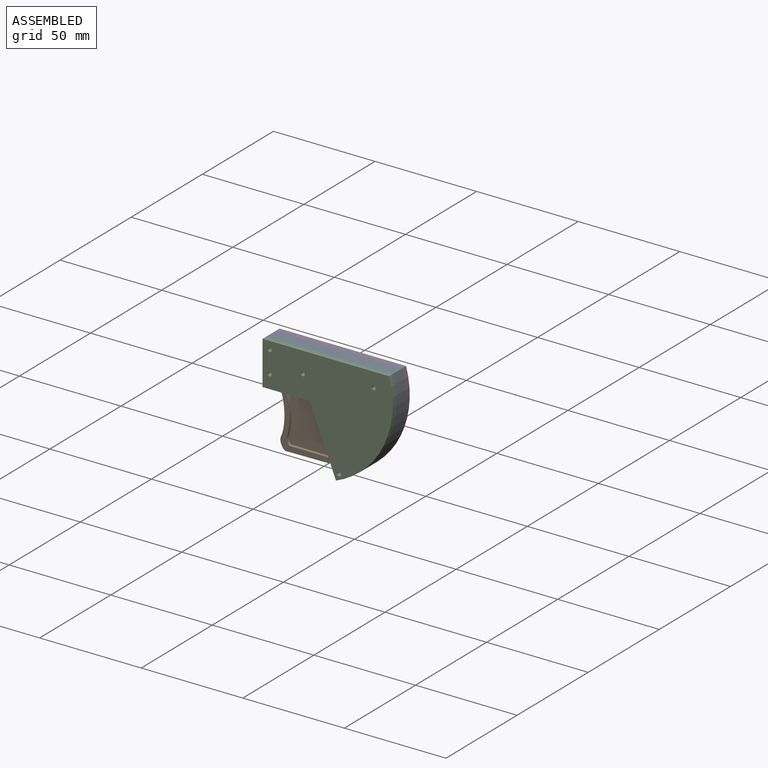
[diagram: assembled view]
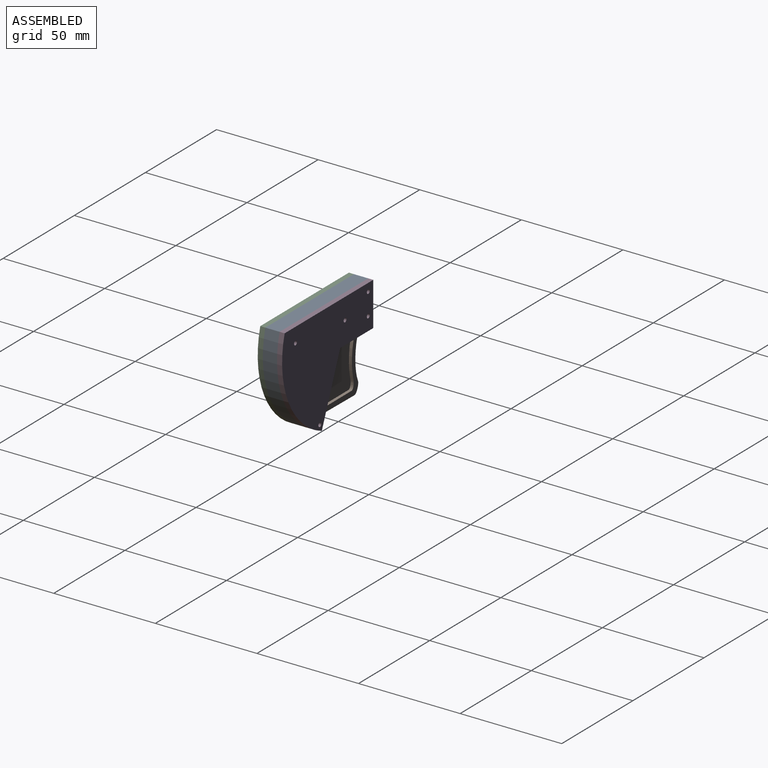
[diagram: assembled view, second angle]
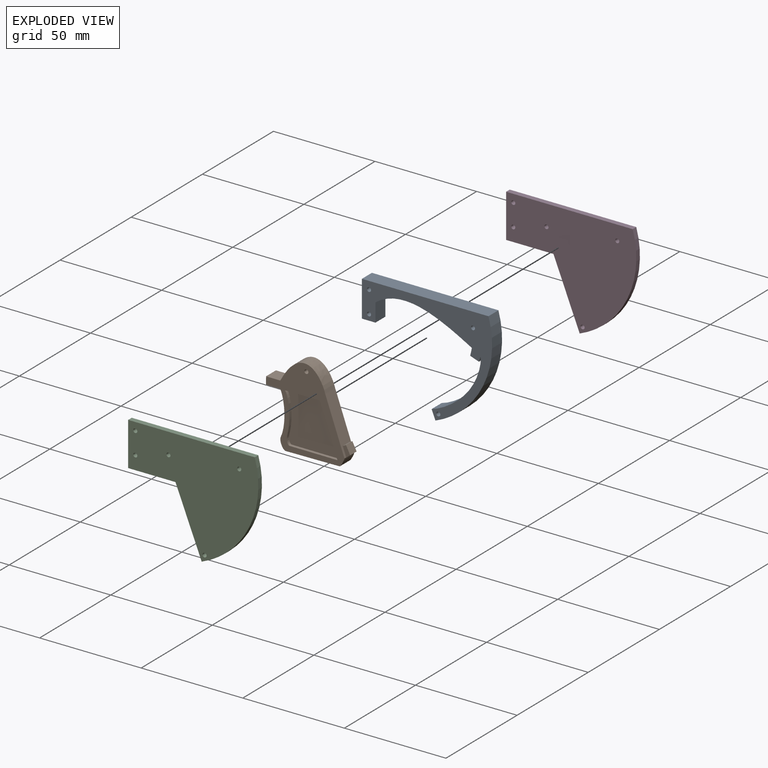
[diagram: exploded view]
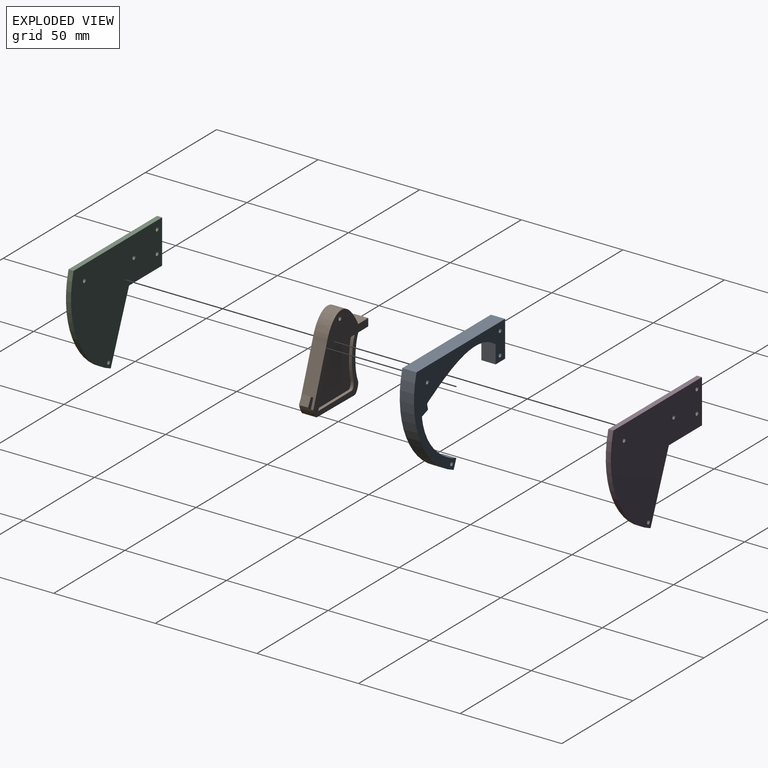
[diagram: exploded view, second angle]
ASSEMBLY  parts=4 mates=3
PART A: 21 faces, bbox 64.1x7x53.4 mm
  f0: plane 7x4.84mm, normal (-0.53,0,-0.85), area 16.5mm2, adj f2,f3,f14,f15,f16,f19,f20
  f1: extruded ~45.63x11.18mm, area 342.3mm2, adj f2,f13,f14,f15
  f2: plane 7x1.19mm, normal (-0.49,0,-0.87), area 9.5mm2, adj f0,f1,f14,f15,f17
  f3: extruded ~29.82x24.19mm, area 286.5mm2, adj f0,f4,f14,f15
  f4: plane 7x4.64mm, normal (-0.93,0,-0.37), area 35mm2, adj f3,f5,f14,f15
  f5: cylinder r=44.03mm len=53.4mm, axis (0,1,0), area 456.7mm2, adj f4,f6,f14,f15
  f6: plane 62.29x7mm, normal (0,0,1), area 436mm2, adj f5,f7,f14,f15
  f7: plane 17.71x7mm, normal (-1,0,0), area 124mm2, adj f6,f8,f14,f15
  f8: plane 7x6.67mm, normal (0,0,-1), area 46.7mm2, adj f7,f13,f14,f15
  f9: cylinder r=1mm len=7mm, axis (0,1,0), area 44mm2, adj f14,f15
  f10: cylinder r=1mm len=7mm, axis (0,1,0), area 44mm2, adj f14,f15
  f11: cylinder r=1mm len=7mm, axis (0,1,0), area 44mm2, adj f14,f15
  f12: cylinder r=1mm len=7mm, axis (0,1,0), area 44mm2, adj f14,f15
  f13: plane 9.06x7mm, normal (1,0,0), area 63.4mm2, adj f1,f8,f14,f15
  f14: plane 64.08x53.4mm, normal (0,-1,0), area 835.9mm2, adj f0,f1,f2,f3,f4,f5,f6,f7
  f15: plane 64.08x53.4mm, normal (0,1,0), area 835.9mm2, adj f0,f1,f2,f3,f4,f5,f6,f7
  f16: plane 4.5x3.5mm, normal (0.94,0,-0.33), area 16.7mm2, adj f0,f18,f19,f20
  f17: plane 4.76x4.5mm, normal (-0.98,0,0.22), area 21.9mm2, adj f2,f18,f19,f20
  f18: plane 4.5x4.25mm, normal (-0.33,0,-0.94), area 20.2mm2, adj f16,f17,f19,f20
  f19: plane 6.25x5.47mm, normal (0,-1,0), area 20.3mm2, adj f0,f16,f17,f18
  f20: plane 6.25x5.47mm, normal (0,1,0), area 20.3mm2, adj f0,f16,f17,f18
PART B: 29 faces, bbox 40.6x7x44.4 mm
  f0: plane 26.15x9.53mm, normal (0.94,0,0.34), area 171mm2, adj f1,f8,f10,f11,f14,f15,f16
  f1: extruded ~22.14x10.9mm, area 228mm2, adj f0,f2,f10,f11
  f2: plane 7x6.95mm, normal (0,0,1), area 48.6mm2, adj f1,f3,f10,f11
  f3: plane 6.95x3.73mm, normal (-1,0,0), area 25.9mm2, adj f2,f4,f10,f11
  f4: plane 7x6.95mm, normal (0,0,-1), area 48.6mm2, adj f3,f5,f10,f11
  f5: extruded ~21.56x6.95mm, area 153.5mm2, adj f4,f6,f10,f11
  f6: extruded ~6.95x5.34mm, area 44.4mm2, adj f5,f7,f10,f11
  f7: plane 26.52x6.95mm, normal (0.01,0,-1), area 184.3mm2, adj f6,f8,f10,f11
  f8: extruded ~6.95x4.11mm, area 33.8mm2, adj f0,f7,f10,f11,f12
  f9: cylinder r=1mm len=6.95mm, axis (0,1,0), area 43.7mm2, adj f10,f11
  f10: plane 44.45x38.7mm, normal (0,-1,0), area 509.5mm2, adj f0,f1,f2,f3,f4,f5,f6,f7
  f11: plane 44.45x38.7mm, normal (0,1,0), area 509.5mm2, adj f0,f1,f2,f3,f4,f5,f6,f7
  f12: plane 4.5x1.96mm, normal (0.61,0,-0.79), area 11.1mm2, adj f8,f13,f15,f16
  f13: plane 4.5x4mm, normal (0.89,0,0.46), area 20.2mm2, adj f12,f14,f15,f16
  f14: plane 4.5x1.6mm, normal (-0.46,0,0.89), area 8.1mm2, adj f0,f13,f15,f16
  f15: plane 5.51x3.66mm, normal (0,-1,0), area 9.9mm2, adj f0,f12,f13,f14
  f16: plane 5.51x3.66mm, normal (0,1,0), area 9.9mm2, adj f0,f12,f13,f14
  f17: extruded ~18.22x2.1mm, area 27.9mm2, adj f10,f18,f21,f22
  f18: extruded ~5.9x1.51mm, area 9.9mm2, adj f10,f17,f19,f22
  f19: plane 23.37x1.5mm, normal (0,0,1), area 35.1mm2, adj f10,f18,f20,f22
  f20: plane 24.12x8.79mm, normal (-0.94,0,-0.34), area 38.5mm2, adj f10,f19,f21,f22
  f21: plane 17.01x1.5mm, normal (0,0,-1), area 25.5mm2, adj f10,f17,f20,f22
  f22: plane 25.8x24.13mm, normal (0,-1,0), area 479.5mm2, adj f17,f18,f19,f20,f21
  f23: plane 23.37x1.5mm, normal (0,0,1), area 35.1mm2, adj f11,f24,f27,f28
  f24: extruded ~5.9x1.51mm, area 9.9mm2, adj f11,f23,f25,f28
  f25: extruded ~18.22x2.1mm, area 27.9mm2, adj f11,f24,f26,f28
  f26: plane 17.01x1.5mm, normal (0,0,-1), area 25.5mm2, adj f11,f25,f27,f28
  f27: plane 24.12x8.79mm, normal (-0.94,0,-0.34), area 38.5mm2, adj f11,f23,f26,f28
  f28: plane 25.8x24.13mm, normal (0,1,0), area 479.5mm2, adj f23,f24,f25,f26,f27
PART C: 12 faces, bbox 64.1x2.5x53.4 mm
  f0: plane 31.96x12.9mm, normal (-0.93,0,-0.37), area 86.2mm2, adj f1,f9,f10,f11
  f1: cylinder r=44.03mm len=53.4mm, axis (0,1,0), area 163.1mm2, adj f0,f2,f10,f11
  f2: plane 62.29x2.5mm, normal (0,0,1), area 155.7mm2, adj f1,f3,f10,f11
  f3: plane 21.44x2.5mm, normal (-1,0,0), area 53.6mm2, adj f2,f9,f10,f11
  f4: cylinder r=1mm len=2.5mm, axis (0,1,0), area 15.7mm2, adj f10,f11
  f5: cylinder r=1mm len=2.5mm, axis (0,1,0), area 15.7mm2, adj f10,f11
  f6: cylinder r=1mm len=2.5mm, axis (0,1,0), area 15.7mm2, adj f10,f11
  f7: cylinder r=1mm len=2.5mm, axis (0,1,0), area 15.7mm2, adj f10,f11
  f8: cylinder r=1mm len=2.5mm, axis (0,1,0), area 15.7mm2, adj f10,f11
  f9: plane 23.28x2.5mm, normal (0,0,-1), area 58.2mm2, adj f0,f3,f10,f11
  f10: plane 64.08x53.4mm, normal (0,-1,0), area 2134.1mm2, adj f0,f1,f2,f3,f4,f5,f6,f7
  f11: plane 64.08x53.4mm, normal (0,1,0), area 2134.1mm2, adj f0,f1,f2,f3,f4,f5,f6,f7
PART D: same geometry as C
PLACE A t=(-22.8,-4.75,0.42)mm
PLACE B rot(axis=(0,1,0),0.2deg) t=(-22.84,-4.73,0.47)mm
PLACE C t=(-22.8,-8.25,0.42)mm
PLACE D t=(-22.8,1.25,0.42)mm fixed
MATE revolute B.f9 <-> D.f8  axis (0,1,0) through (-2.98,-1.25,11.55)mm
MATE fastened D.f6 <-> A.f11  axis (0,-1,0) through (31.86,-1.25,14.61)mm
MATE fastened C.f4 <-> A.f9  axis (0,1,0) through (-19.31,-8.25,17.94)mm
